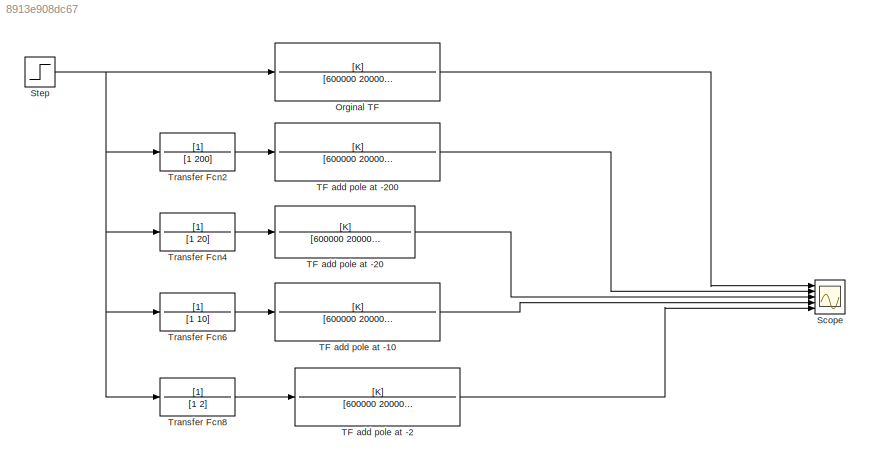
MODEL slx_8913e908dc67
KIND model
CONFIG AbsTol = auto
CONFIG EnableMultiTasking = off
CONFIG FixedStep = auto
CONFIG MaxStep = auto
CONFIG MinStep = auto
CONFIG RelTol = 1e-3
CONFIG SampleTimeConstraint = Unconstrained
CONFIG Solver = VariableStepAuto
CONFIG SolverName = VariableStepAuto
CONFIG StartTime = 0.0
CONFIG StopTime = 10.0
WORKSPACE source: mxarray member
WORKSPACE K = 2000
WORKSPACE Sig: Simulink.Signal (value not decoded)
BLOCK [TransferFcn] Orginal TF
  Denominator = [600000 20000 K]
  Numerator = [K]
BLOCK [Scope] Scope
  Floating = off
  NumInputPorts = 5
  Ports = [5]
  ScopeSpecificationString = Simulink.scopes.TimeScopeBlockCfg('CurrentConfiguration', extmgr.ConfigurationSet(extmgr.Configuration('Core','General UI',true),extmgr.Configuration('Core','Source UI',true),extmgr.Configuration('Sources','WiredSimulink',true),extmgr.Configuration('Visuals','Time Domain',true,'SerializedDisplays',{struct('MinYLimReal','-0.51619','MaxYLimReal','4.64575','YLabelReal','','MinYLimMag','0.00000','MaxY...<+1421ch>
BLOCK [Step] Step
  SampleTime = 0
  Time = 0
BLOCK [TransferFcn] TF add pole at -10
  Denominator = [600000 20000 K]
  Numerator = [K]
BLOCK [TransferFcn] TF add pole at -2
  Denominator = [600000 20000 K]
  Numerator = [K]
BLOCK [TransferFcn] TF add pole at -20
  Denominator = [600000 20000 K]
  Numerator = [K]
BLOCK [TransferFcn] TF add pole at -200
  Denominator = [600000 20000 K]
  Numerator = [K]
BLOCK [TransferFcn] Transfer Fcn2
  Denominator = [1 200]
BLOCK [TransferFcn] Transfer Fcn4
  Denominator = [1 20]
BLOCK [TransferFcn] Transfer Fcn6
  Denominator = [1 10]
BLOCK [TransferFcn] Transfer Fcn8
  Denominator = [1 2]
LINE Orginal TF:1 -> Scope:1
NET Step:1 -> Orginal TF:1, Transfer Fcn2:1, Transfer Fcn4:1, Transfer Fcn6:1, Transfer Fcn8:1
LINE TF add pole at -10:1 -> Scope:4
LINE TF add pole at -200:1 -> Scope:2
LINE TF add pole at -20:1 -> Scope:3
LINE TF add pole at -2:1 -> Scope:5
LINE Transfer Fcn2:1 -> TF add pole at -200:1
LINE Transfer Fcn4:1 -> TF add pole at -20:1
LINE Transfer Fcn6:1 -> TF add pole at -10:1
LINE Transfer Fcn8:1 -> TF add pole at -2:1
note: NET lines group one-source signal fan-out (src -> all destinations, sorted); 1:1 wires keep LINE
